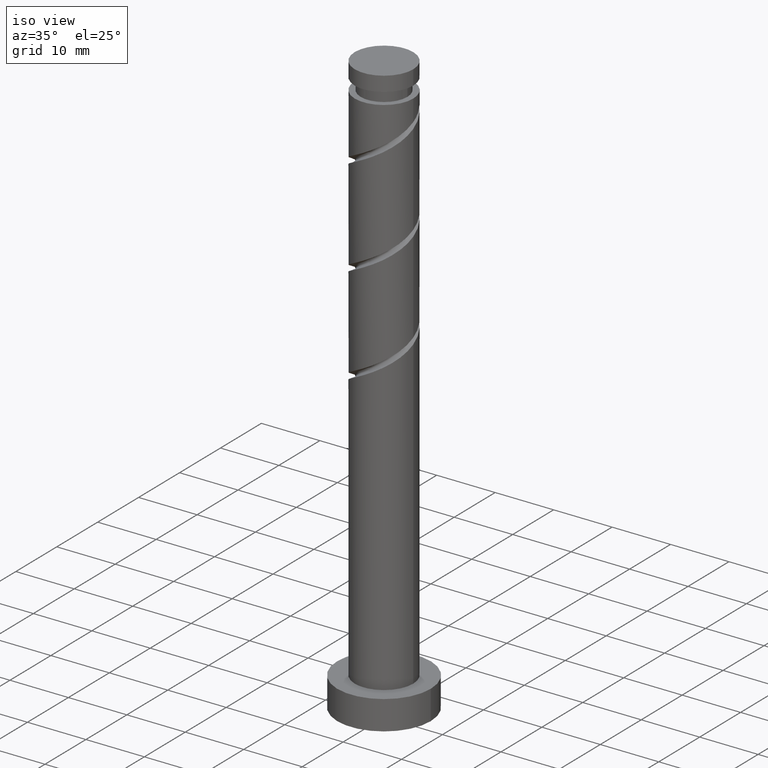
[diagram: clean part render]
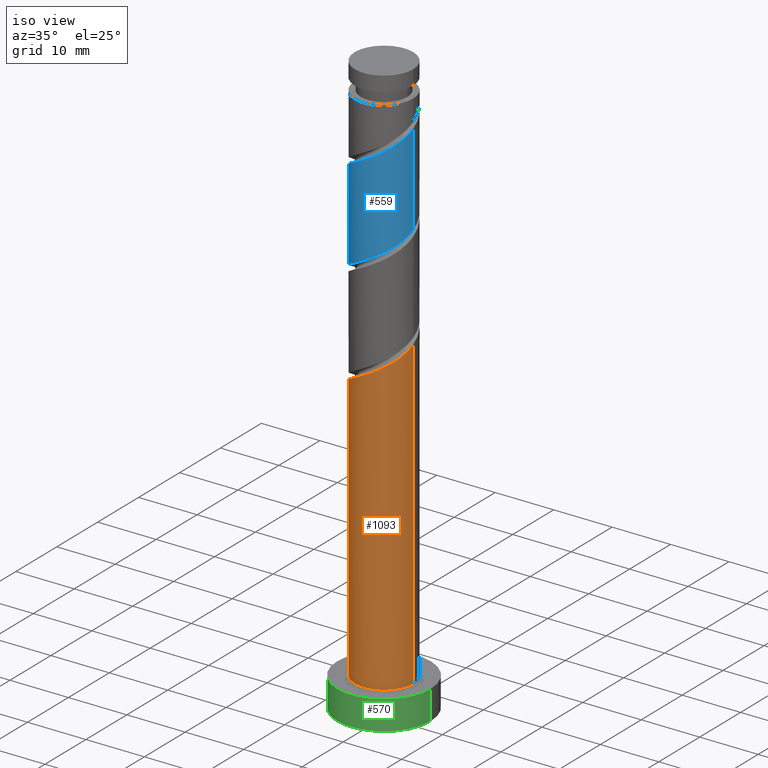
[diagram: same view with three faces highlighted in distinct colors, each labeled with its STEP entity id]
A machine part, iso view with three faces highlighted in distinct colors.
Their STEP definitions:

[orange] entity #1093 — the highlighted cylindrical surface (edge-blend (fillet) strip) has radius 5 mm, axis along (-0, -0, -1).
#19 = AXIS2_PLACEMENT_3D ( 'NONE', #504, #1091, #1101 ) ;
#51 = ORIENTED_EDGE ( 'NONE', *, *, #799, .T. ) ;
#55 = CARTESIAN_POINT ( 'NONE',  ( 3.362772466861005949, -3.803819322636881051, 55.19412225853481857 ) ) ;
#80 = CARTESIAN_POINT ( 'NONE',  ( 0.000000000000000000, 0.000000000000000000, 5.000000000000000000 ) ) ;
#100 = EDGE_LOOP ( 'NONE', ( #235, #113, #1363, #51 ) ) ;
#113 = ORIENTED_EDGE ( 'NONE', *, *, #1115, .F. ) ;
#116 = CARTESIAN_POINT ( 'NONE',  ( 5.000000000000000000, 6.123233995736766282E-16, 100.0000000000000000 ) ) ;
#122 = CYLINDRICAL_SURFACE ( 'NONE', #19, 5.000000000000000000 ) ;
#140 =( BOUNDED_CURVE ( )  B_SPLINE_CURVE ( 2, ( #471, #387, #351, #955, #1321, #475, #1329, #271, #1209, #237, #162, #171, #1056, #1404, #973, #55, #595, #1279, #1398, #742, #1061 ),
 .UNSPECIFIED., .F., .T. ) 
 B_SPLINE_CURVE_WITH_KNOTS ( ( 3, 2, 2, 2, 2, 2, 2, 2, 2, 2, 3 ),
 ( 0.05452480538552905570, 0.05555555555555558023, 0.06944444444444441977, 0.08333333333333337034, 0.09722222222222220989, 0.1111111111111111605, 0.1250000000000000000, 0.1388888888888888395, 0.1527777777777777901, 0.1666666666666666297, 0.1795248053855290626 ),
 .UNSPECIFIED. ) 
 CURVE ( )  GEOMETRIC_REPRESENTATION_ITEM ( )  RATIONAL_B_SPLINE_CURVE ( ( 0.9071930855141259187, 0.9080659294509736412, 0.9090909090909138346, 0.8952797754656482976, 0.9090909090909138346, 0.8952797754656482976, 0.9090909090909138346, 0.8952797754656482976, 0.9090909090909138346, 0.8952797754656482976, 0.9090909090909138346, 0.8952797754656482976, 0.9090909090909138346, 0.8952797754656482976, 0.9090909090909138346, 0.8952797754656482976, 0.9090909090909138346, 0.8952797754656482976, 0.9090909090909138346, 0.8963047551055883799, 0.9071930855141261407 ) ) 
 REPRESENTATION_ITEM ( '' )  );
#162 = CARTESIAN_POINT ( 'NONE',  ( -0.7409163498720054974, -4.944799587697405130, 52.87930744372000191 ) ) ;
#171 = CARTESIAN_POINT ( 'NONE',  ( 0.1309852316351392543, -5.075443130627872002, 53.34227040668297093 ) ) ;
#195 = CARTESIAN_POINT ( 'NONE',  ( 5.000000000000006217, -3.846783885825127852E-15, 57.44104514799050065 ) ) ;
#235 = ORIENTED_EDGE ( 'NONE', *, *, #1011, .F. ) ;
#237 = CARTESIAN_POINT ( 'NONE',  ( -1.612817931379149750, -4.814156044766936482, 52.41634448075701869 ) ) ;
#253 = CARTESIAN_POINT ( 'NONE',  ( -5.000000000000000000, 0.000000000000000000, 5.000000000000000000 ) ) ;
#271 = CARTESIAN_POINT ( 'NONE',  ( -3.162091449211502869, -3.972210690530860067, 51.49041855483110908 ) ) ;
#316 = DIRECTION ( 'NONE',  ( -0.000000000000000000, -0.000000000000000000, -1.000000000000000000 ) ) ;
#343 = VECTOR ( 'NONE', #316, 1000.000000000000000 ) ;
#351 = CARTESIAN_POINT ( 'NONE',  ( -4.998335745014879983, -0.1289952716443864833, 49.17560374001629242 ) ) ;
#387 = CARTESIAN_POINT ( 'NONE',  ( -5.000000000000007105, -0.06450837166010266188, 49.14172918858952954 ) ) ;
#414 = LINE ( 'NONE', #893, #983 ) ;
#471 = CARTESIAN_POINT ( 'NONE',  ( -5.000000000000006217, 3.727272153449978178E-15, 49.10771181465715784 ) ) ;
#475 = CARTESIAN_POINT ( 'NONE',  ( -4.329970070769387114, -2.651158103430556690, 50.56449262890517105 ) ) ;
#504 = CARTESIAN_POINT ( 'NONE',  ( 0.000000000000000000, 0.000000000000000000, 100.0000000000000000 ) ) ;
#543 = DIRECTION ( 'NONE',  ( 0.000000000000000000, 0.000000000000000000, 1.000000000000000000 ) ) ;
#546 = CIRCLE ( 'NONE', #1046, 5.000000000000000000 ) ;
#574 = VERTEX_POINT ( 'NONE', #253 ) ;
#595 = CARTESIAN_POINT ( 'NONE',  ( 3.911863884632767796, -3.114052174917097293, 55.65708522149778048 ) ) ;
#742 = CARTESIAN_POINT ( 'NONE',  ( 5.000000000000005329, -0.8152718591022886097, 57.01112563562486457 ) ) ;
#799 = EDGE_CURVE ( 'NONE', #574, #1248, #546, .T. ) ;
#824 = CARTESIAN_POINT ( 'NONE',  ( -5.000000000000006217, 3.727272153449978178E-15, 49.10771181465715784 ) ) ;
#893 = CARTESIAN_POINT ( 'NONE',  ( -5.000000000000000000, 0.000000000000000000, 100.0000000000000000 ) ) ;
#955 = CARTESIAN_POINT ( 'NONE',  ( -4.975590398240157697, -1.010336722130056542, 49.63856670297924722 ) ) ;
#973 = CARTESIAN_POINT ( 'NONE',  ( 2.610881054719553340, -4.264188096004511763, 54.73115929557186377 ) ) ;
#983 = VECTOR ( 'NONE', #1450, 1000.000000000000000 ) ;
#1011 = EDGE_CURVE ( 'NONE', #1270, #1248, #1168, .T. ) ;
#1015 = DIRECTION ( 'NONE',  ( 1.000000000000000000, 0.000000000000000000, 0.000000000000000000 ) ) ;
#1031 = CARTESIAN_POINT ( 'NONE',  ( 5.000000000000000000, 6.123233995736766282E-16, 5.000000000000000000 ) ) ;
#1046 = AXIS2_PLACEMENT_3D ( 'NONE', #80, #543, #1015 ) ;
#1056 = CARTESIAN_POINT ( 'NONE',  ( 0.9949874371066199652, -4.900000000000006573, 53.80523336964591152 ) ) ;
#1061 = CARTESIAN_POINT ( 'NONE',  ( 5.000000000000006217, -3.846783885825127852E-15, 57.44104514799050065 ) ) ;
#1067 = FACE_OUTER_BOUND ( 'NONE', #100, .T. ) ;
#1091 = DIRECTION ( 'NONE',  ( -0.000000000000000000, -0.000000000000000000, -1.000000000000000000 ) ) ;
#1093 = ADVANCED_FACE ( 'NONE', ( #1067 ), #122, .T. ) ;
#1101 = DIRECTION ( 'NONE',  ( -1.000000000000000000, 0.000000000000000000, 0.000000000000000000 ) ) ;
#1115 = EDGE_CURVE ( 'NONE', #1120, #1270, #140, .T. ) ;
#1120 = VERTEX_POINT ( 'NONE', #824 ) ;
#1168 = LINE ( 'NONE', #116, #343 ) ;
#1209 = CARTESIAN_POINT ( 'NONE',  ( -2.387454690295326643, -4.393183367648898496, 51.95338151779407809 ) ) ;
#1221 = EDGE_CURVE ( 'NONE', #1120, #574, #414, .T. ) ;
#1248 = VERTEX_POINT ( 'NONE', #1031 ) ;
#1270 = VERTEX_POINT ( 'NONE', #195 ) ;
#1279 = CARTESIAN_POINT ( 'NONE',  ( 4.460955302404528311, -2.424285027197314868, 56.12004818446074239 ) ) ;
#1321 = CARTESIAN_POINT ( 'NONE',  ( -4.652780234504771961, -1.830747412780306282, 50.10152966594223045 ) ) ;
#1329 = CARTESIAN_POINT ( 'NONE',  ( -3.746030759990444992, -3.311684396980707046, 51.02745559186814717 ) ) ;
#1363 = ORIENTED_EDGE ( 'NONE', *, *, #1221, .T. ) ;
#1398 = CARTESIAN_POINT ( 'NONE',  ( 4.741018197097065290, -1.588315603019301303, 56.58301114742370430 ) ) ;
#1404 = CARTESIAN_POINT ( 'NONE',  ( 1.858989642578098733, -4.724556869372143808, 54.26819633260888764 ) ) ;
#1450 = DIRECTION ( 'NONE',  ( -0.000000000000000000, -0.000000000000000000, -1.000000000000000000 ) ) ;

[blue] entity #559 — the highlighted cylindrical surface (edge-blend (fillet) strip) has radius 5 mm, axis along (-0, -0, -1).
#8 = CARTESIAN_POINT ( 'NONE',  ( 2.610881054719553340, -4.264188096004511763, 88.06449262890519947 ) ) ;
#36 =( BOUNDED_CURVE ( )  B_SPLINE_CURVE ( 2, ( #1165, #680, #1255, #795, #696, #1260, #465, #112, #1052, #811, #1274, #1138, #688, #913, #8, #1147, #569, #1366, #95, #1380, #1047 ),
 .UNSPECIFIED., .F., .T. ) 
 B_SPLINE_CURVE_WITH_KNOTS ( ( 3, 2, 2, 2, 2, 2, 2, 2, 2, 2, 3 ),
 ( 0.5545248053855290626, 0.5555555555555555802, 0.5694444444444444198, 0.5833333333333332593, 0.5972222222222222099, 0.6111111111111111605, 0.6250000000000000000, 0.6388888888888888395, 0.6527777777777777901, 0.6666666666666667407, 0.6795248053855291737 ),
 .UNSPECIFIED. ) 
 CURVE ( )  GEOMETRIC_REPRESENTATION_ITEM ( )  RATIONAL_B_SPLINE_CURVE ( ( 0.9071930855141259187, 0.9080659294509736412, 0.9090909090909138346, 0.8952797754656482976, 0.9090909090909138346, 0.8952797754656482976, 0.9090909090909138346, 0.8952797754656482976, 0.9090909090909138346, 0.8952797754656482976, 0.9090909090909138346, 0.8952797754656482976, 0.9090909090909138346, 0.8952797754656482976, 0.9090909090909138346, 0.8952797754656482976, 0.9090909090909138346, 0.8952797754656482976, 0.9090909090909138346, 0.8963047551055882689, 0.9071930855141263628 ) ) 
 REPRESENTATION_ITEM ( '' )  );
#77 = EDGE_CURVE ( 'NONE', #618, #815, #1304, .T. ) ;
#95 = CARTESIAN_POINT ( 'NONE',  ( 4.741018197097065290, -1.588315603019301303, 89.91634448075701869 ) ) ;
#98 = VECTOR ( 'NONE', #259, 1000.000000000000000 ) ;
#112 = CARTESIAN_POINT ( 'NONE',  ( -3.162091449211502869, -3.972210690530860067, 84.82375188816442346 ) ) ;
#183 = CARTESIAN_POINT ( 'NONE',  ( 3.162091449211497540, -3.972210690530855182, 72.78671485112741379 ) ) ;
#224 = CARTESIAN_POINT ( 'NONE',  ( -4.999999999999997335, -2.427582063870242635E-15, 66.83608825796801511 ) ) ;
#244 = CARTESIAN_POINT ( 'NONE',  ( 0.000000000000000000, 0.000000000000000000, 100.0000000000000000 ) ) ;
#257 = EDGE_CURVE ( 'NONE', #1419, #1352, #692, .T. ) ;
#259 = DIRECTION ( 'NONE',  ( -0.000000000000000000, -0.000000000000000000, -1.000000000000000000 ) ) ;
#266 = CARTESIAN_POINT ( 'NONE',  ( -0.1309852316351434176, -5.075443130627863120, 70.93486299927553773 ) ) ;
#275 = CARTESIAN_POINT ( 'NONE',  ( -3.362772466861001064, -3.803819322636873945, 69.08301114742370430 ) ) ;
#319 = EDGE_CURVE ( 'NONE', #618, #1419, #36, .T. ) ;
#323 = CARTESIAN_POINT ( 'NONE',  ( 5.000000000000000000, 6.123233995736766282E-16, 100.0000000000000000 ) ) ;
#391 = CARTESIAN_POINT ( 'NONE',  ( 4.998335745014871989, -0.1289952716443893421, 75.10152966594222335 ) ) ;
#410 = CARTESIAN_POINT ( 'NONE',  ( 1.612817931379145753, -4.814156044766930265, 71.86078892520143313 ) ) ;
#465 = CARTESIAN_POINT ( 'NONE',  ( -3.746030759990444992, -3.311684396980707046, 84.36078892520148997 ) ) ;
#473 = DIRECTION ( 'NONE',  ( -1.000000000000000000, 0.000000000000000000, 0.000000000000000000 ) ) ;
#509 = CARTESIAN_POINT ( 'NONE',  ( -1.858989642578099843, -4.724556869372135814, 70.00893707334961391 ) ) ;
#551 = EDGE_LOOP ( 'NONE', ( #1216, #761, #950, #829 ) ) ;
#559 = ADVANCED_FACE ( 'NONE', ( #834 ), #612, .T. ) ;
#569 = CARTESIAN_POINT ( 'NONE',  ( 3.911863884632767796, -3.114052174917097293, 88.99041855483110908 ) ) ;
#612 = CYLINDRICAL_SURFACE ( 'NONE', #1164, 5.000000000000000000 ) ;
#618 = VERTEX_POINT ( 'NONE', #776 ) ;
#642 = CARTESIAN_POINT ( 'NONE',  ( -3.911863884632763355, -3.114052174917091520, 68.62004818446075660 ) ) ;
#654 = CARTESIAN_POINT ( 'NONE',  ( 2.387454690295322646, -4.393183367648893167, 72.32375188816443767 ) ) ;
#675 = CARTESIAN_POINT ( 'NONE',  ( 4.999999999999998224, 4.481689964068140371E-16, 75.16942159130135792 ) ) ;
#680 = CARTESIAN_POINT ( 'NONE',  ( -5.000000000000007105, -0.06450837166010266188, 82.47506252192285103 ) ) ;
#687 = EDGE_CURVE ( 'NONE', #1352, #815, #1078, .T. ) ;
#688 = CARTESIAN_POINT ( 'NONE',  ( 0.9949874371066199652, -4.900000000000006573, 87.13856670297928986 ) ) ;
#692 = LINE ( 'NONE', #323, #1242 ) ;
#696 = CARTESIAN_POINT ( 'NONE',  ( -4.652780234504771961, -1.830747412780306282, 83.43486299927556615 ) ) ;
#745 = CARTESIAN_POINT ( 'NONE',  ( -4.741018197097059073, -1.588315603019294420, 67.69412225853481857 ) ) ;
#761 = ORIENTED_EDGE ( 'NONE', *, *, #319, .F. ) ;
#776 = CARTESIAN_POINT ( 'NONE',  ( -5.000000000000006217, -2.711422428261206347E-15, 82.44104514799049355 ) ) ;
#795 = CARTESIAN_POINT ( 'NONE',  ( -4.975590398240157697, -1.010336722130056542, 82.97190003631259003 ) ) ;
#797 = CARTESIAN_POINT ( 'NONE',  ( 5.000000000000006217, 2.569502246065716405E-15, 90.77437848132383635 ) ) ;
#811 = CARTESIAN_POINT ( 'NONE',  ( -1.612817931379149750, -4.814156044766936482, 85.74967781409037570 ) ) ;
#815 = VERTEX_POINT ( 'NONE', #224 ) ;
#829 = ORIENTED_EDGE ( 'NONE', *, *, #687, .F. ) ;
#834 = FACE_OUTER_BOUND ( 'NONE', #551, .T. ) ;
#869 = CARTESIAN_POINT ( 'NONE',  ( -4.460955302404522094, -2.424285027197310427, 68.15708522149775206 ) ) ;
#879 = CARTESIAN_POINT ( 'NONE',  ( 4.329970070769377344, -2.651158103430555801, 73.71264077705332340 ) ) ;
#913 = CARTESIAN_POINT ( 'NONE',  ( 1.858989642578098733, -4.724556869372143808, 87.60152966594220914 ) ) ;
#950 = ORIENTED_EDGE ( 'NONE', *, *, #77, .T. ) ;
#995 = CARTESIAN_POINT ( 'NONE',  ( -4.999999999999999112, -0.8152718591022831696, 67.26600777033364409 ) ) ;
#1047 = CARTESIAN_POINT ( 'NONE',  ( 5.000000000000006217, 2.569502246065716405E-15, 90.77437848132383635 ) ) ;
#1052 = CARTESIAN_POINT ( 'NONE',  ( -2.387454690295326643, -4.393183367648898496, 85.28671485112741379 ) ) ;
#1078 =( BOUNDED_CURVE ( )  B_SPLINE_CURVE ( 2, ( #1232, #1326, #391, #1432, #1341, #879, #1127, #183, #654, #410, #1453, #266, #1332, #509, #1121, #275, #642, #869, #745, #995, #1112 ),
 .UNSPECIFIED., .F., .T. ) 
 B_SPLINE_CURVE_WITH_KNOTS ( ( 3, 2, 2, 2, 2, 2, 2, 2, 2, 2, 3 ),
 ( 0.5545248053855290626, 0.5555555555555555802, 0.5694444444444444198, 0.5833333333333333703, 0.5972222222222222099, 0.6111111111111111605, 0.6250000000000000000, 0.6388888888888888395, 0.6527777777777777901, 0.6666666666666666297, 0.6795248053855290626 ),
 .UNSPECIFIED. ) 
 CURVE ( )  GEOMETRIC_REPRESENTATION_ITEM ( )  RATIONAL_B_SPLINE_CURVE ( ( 0.9071930855141199235, 0.9080659294509675350, 0.9090909090909076173, 0.8952797754656421914, 0.9090909090909076173, 0.8952797754656421914, 0.9090909090909076173, 0.8952797754656421914, 0.9090909090909076173, 0.8952797754656421914, 0.9090909090909076173, 0.8952797754656421914, 0.9090909090909076173, 0.8952797754656421914, 0.9090909090909076173, 0.8952797754656421914, 0.9090909090909076173, 0.8952797754656421914, 0.9090909090909076173, 0.8963047551055822737, 0.9071930855141199235 ) ) 
 REPRESENTATION_ITEM ( '' )  );
#1112 = CARTESIAN_POINT ( 'NONE',  ( -4.999999999999998224, -2.427582063870242635E-15, 66.83608825796801511 ) ) ;
#1121 = CARTESIAN_POINT ( 'NONE',  ( -2.610881054719550676, -4.264188096004503770, 69.54597411038668042 ) ) ;
#1127 = CARTESIAN_POINT ( 'NONE',  ( 3.746030759990437886, -3.311684396980705269, 73.24967781409034728 ) ) ;
#1138 = CARTESIAN_POINT ( 'NONE',  ( 0.1309852316351392543, -5.075443130627872002, 86.67560374001627110 ) ) ;
#1147 = CARTESIAN_POINT ( 'NONE',  ( 3.362772466861005949, -3.803819322636881051, 88.52745559186817559 ) ) ;
#1164 = AXIS2_PLACEMENT_3D ( 'NONE', #244, #1190, #473 ) ;
#1165 = CARTESIAN_POINT ( 'NONE',  ( -5.000000000000006217, -2.711422428261206347E-15, 82.44104514799047934 ) ) ;
#1190 = DIRECTION ( 'NONE',  ( -0.000000000000000000, -0.000000000000000000, -1.000000000000000000 ) ) ;
#1216 = ORIENTED_EDGE ( 'NONE', *, *, #257, .F. ) ;
#1232 = CARTESIAN_POINT ( 'NONE',  ( 4.999999999999998224, 4.481689964068140371E-16, 75.16942159130135792 ) ) ;
#1242 = VECTOR ( 'NONE', #1485, 1000.000000000000000 ) ;
#1255 = CARTESIAN_POINT ( 'NONE',  ( -4.998335745014879983, -0.1289952716443864833, 82.50893707334962812 ) ) ;
#1260 = CARTESIAN_POINT ( 'NONE',  ( -4.329970070769387114, -2.651158103430556690, 83.89782596223849964 ) ) ;
#1274 = CARTESIAN_POINT ( 'NONE',  ( -0.7409163498720054974, -4.944799587697405130, 86.21264077705335183 ) ) ;
#1304 = LINE ( 'NONE', #1401, #98 ) ;
#1326 = CARTESIAN_POINT ( 'NONE',  ( 4.999999999999999112, -0.06450837166010622847, 75.13540421736900043 ) ) ;
#1332 = CARTESIAN_POINT ( 'NONE',  ( -0.9949874371066205203, -4.899999999999998579, 70.47190003631260424 ) ) ;
#1341 = CARTESIAN_POINT ( 'NONE',  ( 4.652780234504764856, -1.830747412780304062, 74.17560374001631374 ) ) ;
#1352 = VERTEX_POINT ( 'NONE', #675 ) ;
#1366 = CARTESIAN_POINT ( 'NONE',  ( 4.460955302404528311, -2.424285027197314868, 89.45338151779405678 ) ) ;
#1380 = CARTESIAN_POINT ( 'NONE',  ( 5.000000000000007994, -0.8152718591022822814, 90.34445896895822159 ) ) ;
#1401 = CARTESIAN_POINT ( 'NONE',  ( -5.000000000000000000, 0.000000000000000000, 100.0000000000000000 ) ) ;
#1419 = VERTEX_POINT ( 'NONE', #797 ) ;
#1432 = CARTESIAN_POINT ( 'NONE',  ( 4.975590398240150591, -1.010336722130056542, 74.63856670297923301 ) ) ;
#1453 = CARTESIAN_POINT ( 'NONE',  ( 0.7409163498720023888, -4.944799587697395360, 71.39782596223851385 ) ) ;
#1485 = DIRECTION ( 'NONE',  ( -0.000000000000000000, -0.000000000000000000, -1.000000000000000000 ) ) ;

[green] entity #570 — the highlighted cylindrical surface (partial cylindrical patch) has radius 8 mm, axis along (-0, -0, -1).
#20 = FACE_OUTER_BOUND ( 'NONE', #318, .T. ) ;
#39 = CIRCLE ( 'NONE', #1458, 8.000000000000000000 ) ;
#63 = DIRECTION ( 'NONE',  ( 0.000000000000000000, 0.000000000000000000, 1.000000000000000000 ) ) ;
#110 = CARTESIAN_POINT ( 'NONE',  ( -8.000000000000000000, 0.000000000000000000, 0.000000000000000000 ) ) ;
#180 = DIRECTION ( 'NONE',  ( 0.000000000000000000, 0.000000000000000000, 1.000000000000000000 ) ) ;
#203 = AXIS2_PLACEMENT_3D ( 'NONE', #1281, #953, #1081 ) ;
#214 = LINE ( 'NONE', #927, #587 ) ;
#270 = EDGE_CURVE ( 'NONE', #683, #890, #214, .T. ) ;
#318 = EDGE_LOOP ( 'NONE', ( #1316, #1034, #646, #690 ) ) ;
#340 = CARTESIAN_POINT ( 'NONE',  ( 8.000000000000000000, 9.797174393178825657E-16, 0.000000000000000000 ) ) ;
#384 = CARTESIAN_POINT ( 'NONE',  ( 8.000000000000000000, 9.797174393178825657E-16, 5.000000000000000000 ) ) ;
#395 = VERTEX_POINT ( 'NONE', #340 ) ;
#400 = CARTESIAN_POINT ( 'NONE',  ( -8.000000000000000000, 0.000000000000000000, 5.000000000000000000 ) ) ;
#423 = DIRECTION ( 'NONE',  ( 1.000000000000000000, 0.000000000000000000, 0.000000000000000000 ) ) ;
#570 = ADVANCED_FACE ( 'NONE', ( #20 ), #971, .T. ) ;
#587 = VECTOR ( 'NONE', #1161, 1000.000000000000000 ) ;
#646 = ORIENTED_EDGE ( 'NONE', *, *, #270, .T. ) ;
#683 = VERTEX_POINT ( 'NONE', #400 ) ;
#690 = ORIENTED_EDGE ( 'NONE', *, *, #1360, .T. ) ;
#697 = AXIS2_PLACEMENT_3D ( 'NONE', #1336, #63, #423 ) ;
#718 = CIRCLE ( 'NONE', #697, 8.000000000000000000 ) ;
#737 = DIRECTION ( 'NONE',  ( -0.000000000000000000, -0.000000000000000000, -1.000000000000000000 ) ) ;
#783 = CARTESIAN_POINT ( 'NONE',  ( 0.000000000000000000, 0.000000000000000000, 0.000000000000000000 ) ) ;
#806 = VERTEX_POINT ( 'NONE', #384 ) ;
#808 = EDGE_CURVE ( 'NONE', #806, #395, #861, .T. ) ;
#861 = LINE ( 'NONE', #1317, #1415 ) ;
#890 = VERTEX_POINT ( 'NONE', #110 ) ;
#927 = CARTESIAN_POINT ( 'NONE',  ( -8.000000000000000000, 0.000000000000000000, 5.000000000000000000 ) ) ;
#953 = DIRECTION ( 'NONE',  ( -0.000000000000000000, -0.000000000000000000, -1.000000000000000000 ) ) ;
#971 = CYLINDRICAL_SURFACE ( 'NONE', #203, 8.000000000000000000 ) ;
#1010 = DIRECTION ( 'NONE',  ( 1.000000000000000000, 0.000000000000000000, 0.000000000000000000 ) ) ;
#1034 = ORIENTED_EDGE ( 'NONE', *, *, #1309, .F. ) ;
#1081 = DIRECTION ( 'NONE',  ( -1.000000000000000000, 0.000000000000000000, 0.000000000000000000 ) ) ;
#1161 = DIRECTION ( 'NONE',  ( -0.000000000000000000, -0.000000000000000000, -1.000000000000000000 ) ) ;
#1281 = CARTESIAN_POINT ( 'NONE',  ( 0.000000000000000000, 0.000000000000000000, 5.000000000000000000 ) ) ;
#1309 = EDGE_CURVE ( 'NONE', #683, #806, #718, .T. ) ;
#1316 = ORIENTED_EDGE ( 'NONE', *, *, #808, .F. ) ;
#1317 = CARTESIAN_POINT ( 'NONE',  ( 8.000000000000000000, 9.797174393178825657E-16, 5.000000000000000000 ) ) ;
#1336 = CARTESIAN_POINT ( 'NONE',  ( 0.000000000000000000, 0.000000000000000000, 5.000000000000000000 ) ) ;
#1360 = EDGE_CURVE ( 'NONE', #890, #395, #39, .T. ) ;
#1415 = VECTOR ( 'NONE', #737, 1000.000000000000000 ) ;
#1458 = AXIS2_PLACEMENT_3D ( 'NONE', #783, #180, #1010 ) ;